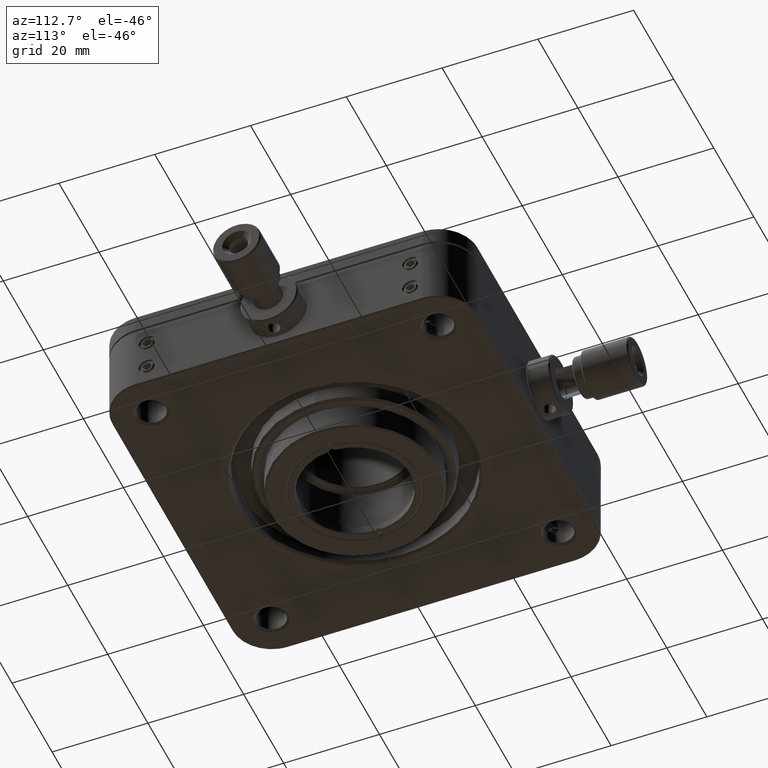
[diagram: clean part render]
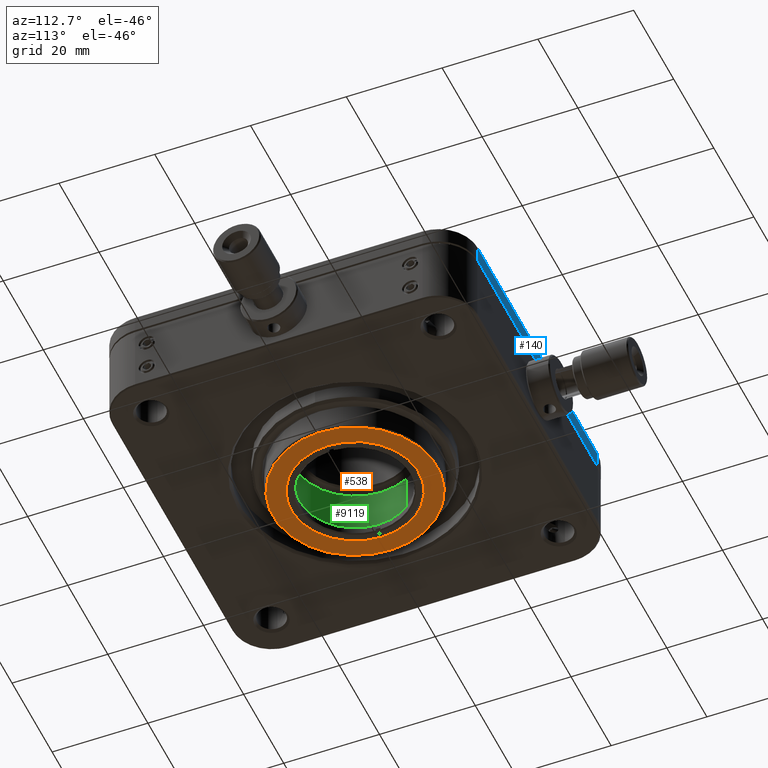
[diagram: same view with three faces highlighted in distinct colors, each labeled with its STEP entity id]
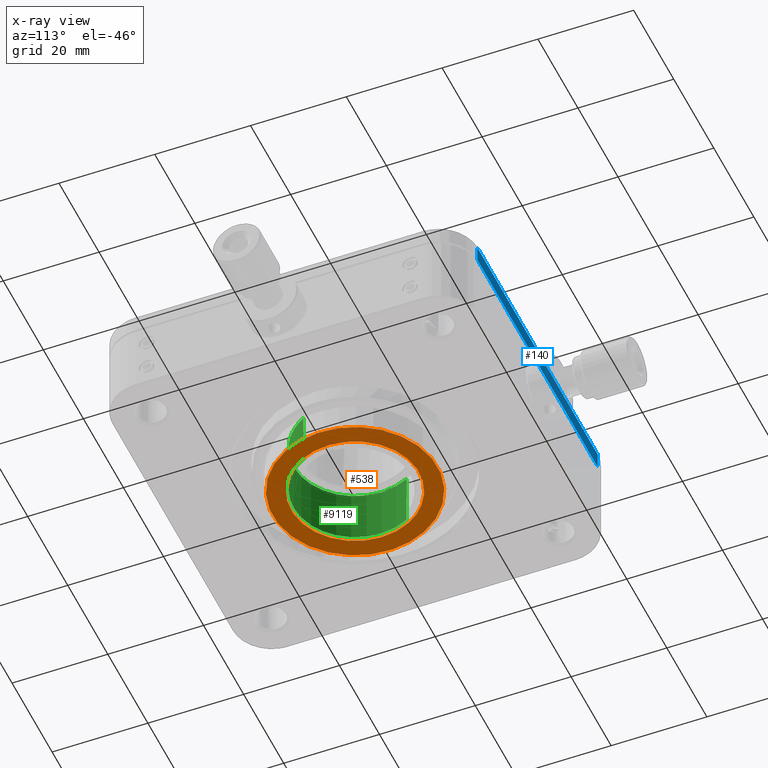
[diagram: x-ray of the same camera — body ghosted, the three highlighted faces saturated]
A machine part, auxiliary view with three faces highlighted in distinct colors.
The next image is the same camera in x-ray (body ghosted, the three faces saturated) — at least one of them is partly hidden behind the body in this view.
Their STEP definitions:

[orange] entity #538 — the highlighted face is a freeform B-spline surface patch.
#146 = CARTESIAN_POINT ( 'NONE',  ( 3.000148285765751321, 13.01436914293553038, -12.50000000000000000 ) ) ;
#538 = ADVANCED_FACE ( 'NONE', ( #1488, #22276 ), #20099, .T. ) ;
#1004 = CARTESIAN_POINT ( 'NONE',  ( 15.18839880033219991, -8.071712450407829920, -12.50000000000000000 ) ) ;
#1039 = CARTESIAN_POINT ( 'NONE',  ( 15.18839880033219991, -8.071712450407829920, -12.50000000000000000 ) ) ;
#1132 = CARTESIAN_POINT ( 'NONE',  ( -14.03619437992443864, 10.00502530690279279, -12.50000000000000000 ) ) ;
#1258 = CARTESIAN_POINT ( 'NONE',  ( -14.65841050661798128, 9.068982064990290581, -12.50000000000000533 ) ) ;
#1378 = CARTESIAN_POINT ( 'NONE',  ( 3.062379221217649938, -12.99985970791079559, -12.50000000000000178 ) ) ;
#1397 = CARTESIAN_POINT ( 'NONE',  ( -9.138995276775430554, 14.61485714588067886, -12.50000000000000178 ) ) ;
#1488 = FACE_BOUND ( 'NONE', #16342, .T. ) ;
#1513 = CARTESIAN_POINT ( 'NONE',  ( -7.752159049110244560, -10.87560223630127432, -12.50000000000000355 ) ) ;
#1532 = CARTESIAN_POINT ( 'NONE',  ( 2.769099949981960851, 17.01315947717462507, -12.50000000000000178 ) ) ;
#1771 = CARTESIAN_POINT ( 'NONE',  ( 12.15263050040040760, 5.539683279839056063, -12.50000000000000355 ) ) ;
#1787 = CARTESIAN_POINT ( 'NONE',  ( -13.34751159718319080, -0.4673896469741548598, -12.49999999999999822 ) ) ;
#1919 = CARTESIAN_POINT ( 'NONE',  ( 2.208607858237243260, -13.17181632325486795, -12.49999999999999645 ) ) ;
#2039 = CARTESIAN_POINT ( 'NONE',  ( 5.481478744456917518, 12.17900179401980232, -12.50000000000000178 ) ) ;
#2069 = CARTESIAN_POINT ( 'NONE',  ( -16.99970946854011444, -2.850466987521836248, -12.50000000000000000 ) ) ;
#2073 = CARTESIAN_POINT ( 'NONE',  ( 16.99970946853106213, 2.850466987883303993, -12.50000000000000000 ) ) ;
#2166 = CARTESIAN_POINT ( 'NONE',  ( 4.676059823144166572, 12.51035504888888461, -12.50000000000000000 ) ) ;
#2331 = CARTESIAN_POINT ( 'NONE',  ( -0.5207827301921591490, -17.22916334049039833, -12.50000000000000000 ) ) ;
#2462 = CARTESIAN_POINT ( 'NONE',  ( -6.034995232019384481, -16.14603178737165834, -12.50000000000000355 ) ) ;
#3415 = CARTESIAN_POINT ( 'NONE',  ( -12.51035504883721927, 4.676059823546214744, -12.50000000000000355 ) ) ;
#3434 = CARTESIAN_POINT ( 'NONE',  ( -10.07207108347648372, 13.98816978805282218, -12.50000000000000533 ) ) ;
#3468 = VERTEX_POINT ( 'NONE', #16494 ) ;
#3684 = CARTESIAN_POINT ( 'NONE',  ( 4.735863965526331043, -12.48784554776886502, -12.50000000000000178 ) ) ;
#3801 = CARTESIAN_POINT ( 'NONE',  ( 13.34960158430685695, -0.4035238107039470501, -12.50000000000000178 ) ) ;
#3814 = CARTESIAN_POINT ( 'NONE',  ( 7.804100416550711294, -10.83838251805759079, -12.50000000000000000 ) ) ;
#3833 = CARTESIAN_POINT ( 'NONE',  ( 12.60749561055297185, -11.75442743654397049, -12.49999999999999645 ) ) ;
#4053 = CARTESIAN_POINT ( 'NONE',  ( 23.53923258574890198, 7.202086586123430223, -12.50000000000000000 ) ) ;
#4060 = CARTESIAN_POINT ( 'NONE',  ( 9.724928229336351038, 9.154259383479782741, -12.50000000000000355 ) ) ;
#4091 = CARTESIAN_POINT ( 'NONE',  ( -17.01315947724854283, 2.769099949721304466, -12.49999999999999822 ) ) ;
#4095 = CARTESIAN_POINT ( 'NONE',  ( 12.55110723242730764, 11.81460923194923218, -12.50000000000000000 ) ) ;
#5405 = CARTESIAN_POINT ( 'NONE',  ( -13.17181632330541241, -2.208607857806386576, -12.50000000000000355 ) ) ;
#5541 = CARTESIAN_POINT ( 'NONE',  ( -0.4035238106612424325, -13.34960158430961563, -12.49999999999999822 ) ) ;
#5668 = CARTESIAN_POINT ( 'NONE',  ( 10.83838251794558616, 7.804100416651814420, -12.50000000000000000 ) ) ;
#5696 = CARTESIAN_POINT ( 'NONE',  ( 14.65841050672153756, -9.068982064795379827, -12.50000000000000178 ) ) ;
#5830 = CARTESIAN_POINT ( 'NONE',  ( 14.03619437962343497, -10.00502530720331151, -12.50000000000000178 ) ) ;
#5893 = EDGE_CURVE ( 'NONE', #19868, #3468, #15162, .T. ) ;
#5935 = CARTESIAN_POINT ( 'NONE',  ( -10.87561288100938839, 7.752146015202260543, -12.50000000000000178 ) ) ;
#5949 = CARTESIAN_POINT ( 'NONE',  ( -12.15263050049145654, -5.539683279654978421, -12.49999999999999645 ) ) ;
#5970 = CARTESIAN_POINT ( 'NONE',  ( 13.98816978815118972, 10.07207108337034462, -12.50000000000000178 ) ) ;
#6060 = CARTESIAN_POINT ( 'NONE',  ( 7.202086586123430223, -23.53923258574890198, -12.50000000000000000 ) ) ;
#6105 = CARTESIAN_POINT ( 'NONE',  ( 16.79651497374374003, -3.872002945166439059, -12.50000000000000178 ) ) ;
#6206 = CARTESIAN_POINT ( 'NONE',  ( 12.99985970795298762, 3.062379221079850833, -12.50000000000000355 ) ) ;
#6240 = CARTESIAN_POINT ( 'NONE',  ( 15.71840288875287328, -7.074413115204975178, -12.50000000000000178 ) ) ;
#6637 = CARTESIAN_POINT ( 'NONE',  ( -11.75442743679452207, -12.60749561029816412, -12.49999999999999822 ) ) ;
#6653 = B_SPLINE_CURVE_WITH_KNOTS ( 'NONE', 3,
 ( #15704, #1258, #1132, #9468, #17727, #3434, #1397, #17594, #13422, #22050, #20039, #9739, #25813, #1532, #7461, #13678, #17999, #26223, #15978, #12452, #4095, #5970, #20590, #12322, #7996, #24478, #2073, #20717, #16381, #10280, #6105, #8393, #6240, #16512 ),
 .UNSPECIFIED., .F., .F.,
 ( 4, 2, 2, 2, 2, 2, 2, 2, 2, 2, 2, 2, 2, 2, 2, 2, 4 ),
 ( 0.000000000000000000, 0.06250000000000002776, 0.1250000000000000555, 0.1875000000000000833, 0.2500000000000000555, 0.3125000000000000000, 0.3750000000000000000, 0.4374999999999999445, 0.4999999999999999445, 0.5624999999999998890, 0.6249999999999998890, 0.6875000000000000000, 0.7500000000000000000, 0.8125000000000000000, 0.8750000000000000000, 0.9375000000000001110, 1.000000000000000000 ),
 .UNSPECIFIED. ) ;
#7461 = CARTESIAN_POINT ( 'NONE',  ( 3.872019060722723172, 16.79651012728189485, -12.50000000000000355 ) ) ;
#7711 = CARTESIAN_POINT ( 'NONE',  ( 0.4673896465433265979, -13.34751159723377079, -12.50000000000000000 ) ) ;
#7843 = CARTESIAN_POINT ( 'NONE',  ( -12.48784554792579726, -4.735863965279094145, -12.50000000000000000 ) ) ;
#7964 = CARTESIAN_POINT ( 'NONE',  ( -5.539683280024289225, 12.15263050024763025, -12.50000000000000000 ) ) ;
#7976 = CARTESIAN_POINT ( 'NONE',  ( -13.01436914298717618, 3.000148285363720024, -12.50000000000000000 ) ) ;
#7996 = CARTESIAN_POINT ( 'NONE',  ( 16.11696629536867320, 6.112174858320924997, -12.50000000000000178 ) ) ;
#8128 = CARTESIAN_POINT ( 'NONE',  ( -15.68435461884501869, -7.149582513768384828, -12.49999999999999822 ) ) ;
#8355 = CARTESIAN_POINT ( 'NONE',  ( -9.768599706146481765, 9.107634607816400774, -12.49999999999999822 ) ) ;
#8390 = CARTESIAN_POINT ( 'NONE',  ( 0.6032102900378915056, -17.22648098935437488, -12.50000000000000355 ) ) ;
#8393 = CARTESIAN_POINT ( 'NONE',  ( 16.14602694111933090, -6.035011347116124192, -12.49999999999999822 ) ) ;
#8522 = CARTESIAN_POINT ( 'NONE',  ( -17.22648098935765049, -0.6032102903520705217, -12.49999999999999822 ) ) ;
#9468 = CARTESIAN_POINT ( 'NONE',  ( -12.60749561025195398, 11.75442743684453184, -12.50000000000000178 ) ) ;
#9739 = CARTESIAN_POINT ( 'NONE',  ( -0.6032102899186259082, 17.22648098936494065, -12.50000000000000178 ) ) ;
#9981 = CARTESIAN_POINT ( 'NONE',  ( 9.107621573870874343, 9.768610350874554982, -12.50000000000000000 ) ) ;
#10013 = CARTESIAN_POINT ( 'NONE',  ( 6.112174858279388445, -16.11696629536521286, -12.50000000000000178 ) ) ;
#10276 = CARTESIAN_POINT ( 'NONE',  ( -15.18839880033219991, 8.071712450407840578, -12.50000000000000000 ) ) ;
#10280 = CARTESIAN_POINT ( 'NONE',  ( 17.01315947719049859, -2.769099949869390453, -12.50000000000000000 ) ) ;
#10415 = CARTESIAN_POINT ( 'NONE',  ( 2.850466987836044019, -16.99970946854341136, -12.50000000000000000 ) ) ;
#10677 = CARTESIAN_POINT ( 'NONE',  ( -16.14602694108813452, 6.035011347174785712, -12.50000000000000178 ) ) ;
#11903 = CARTESIAN_POINT ( 'NONE',  ( 9.768599706048801679, -9.107634608000214627, -12.50000000000000000 ) ) ;
#12013 = CARTESIAN_POINT ( 'NONE',  ( -7.202086586123420453, 23.53923258574890198, -12.50000000000000000 ) ) ;
#12022 = CARTESIAN_POINT ( 'NONE',  ( 12.51035504888061745, -4.676059823257930681, -12.50000000000000178 ) ) ;
#12036 = CARTESIAN_POINT ( 'NONE',  ( 7.081123476495479352, -11.32397387120239607, -12.50000000000000000 ) ) ;
#12055 = CARTESIAN_POINT ( 'NONE',  ( 11.81460923160715559, -12.55110723266789563, -12.49999999999999822 ) ) ;
#12155 = CARTESIAN_POINT ( 'NONE',  ( -7.081123476321678822, 11.32397387131709010, -12.50000000000000355 ) ) ;
#12322 = CARTESIAN_POINT ( 'NONE',  ( 15.68435461908068085, 7.149582513182911825, -12.50000000000000000 ) ) ;
#12449 = CARTESIAN_POINT ( 'NONE',  ( -14.61485714606175890, -9.138995276368211407, -12.50000000000000000 ) ) ;
#12452 = CARTESIAN_POINT ( 'NONE',  ( 11.75442743685301750, 12.60749561022853094, -12.50000000000000178 ) ) ;
#12586 = CARTESIAN_POINT ( 'NONE',  ( -16.11696629543726900, -6.112174857911990777, -12.50000000000000000 ) ) ;
#12758 = B_SPLINE_CURVE_WITH_KNOTS ( 'NONE', 3,
 ( #17846, #26346, #3415, #7976, #18389, #13659, #1787, #5405, #19881, #7843, #5949, #22302, #18253, #15684, #13926, #1513, #15818, #22439, #17978, #18114, #26202, #5541, #7711, #1919, #1378, #3684, #23912, #12036, #3814, #20018, #11903, #16228, #24048, #22033 ),
 .UNSPECIFIED., .F., .F.,
 ( 4, 2, 2, 2, 2, 2, 2, 2, 2, 2, 2, 2, 2, 2, 2, 2, 4 ),
 ( 0.000000000000000000, 0.06250000000000001388, 0.1250000000000000000, 0.1874999999999999722, 0.2499999999999999722, 0.3124999999999999445, 0.3749999999999999445, 0.4375000000000000000, 0.5000000000000000000, 0.5625000000000000000, 0.6250000000000000000, 0.6875000000000000000, 0.7500000000000000000, 0.8125000000000001110, 0.8750000000000001110, 0.9375000000000001110, 1.000000000000000000 ),
 .UNSPECIFIED. ) ;
#12863 = CARTESIAN_POINT ( 'NONE',  ( -16.79651497377487956, 3.872002945107839711, -12.50000000000000000 ) ) ;
#13163 = VERTEX_POINT ( 'NONE', #15030 ) ;
#13422 = CARTESIAN_POINT ( 'NONE',  ( -6.112174858365409413, 16.11696629535507341, -12.50000000000000355 ) ) ;
#13659 = CARTESIAN_POINT ( 'NONE',  ( -13.34960158429881716, 0.4035238106242921008, -12.50000000000000000 ) ) ;
#13678 = CARTESIAN_POINT ( 'NONE',  ( 6.034995231559911133, 16.14603178758112634, -12.50000000000000178 ) ) ;
#13914 = CARTESIAN_POINT ( 'NONE',  ( -9.154259383348584578, 9.724928229444531169, -12.50000000000000000 ) ) ;
#13926 = CARTESIAN_POINT ( 'NONE',  ( -9.107621573908419421, -9.768610350854594060, -12.50000000000000000 ) ) ;
#14082 = CARTESIAN_POINT ( 'NONE',  ( 10.07207108371237858, -13.98816978791052179, -12.49999999999999645 ) ) ;
#14183 = CARTESIAN_POINT ( 'NONE',  ( -11.76835993093174082, 6.254169292243309641, -12.50000000000000000 ) ) ;
#14615 = CARTESIAN_POINT ( 'NONE',  ( 3.952339496939080377, -16.77779849773823528, -12.50000000000000355 ) ) ;
#14873 = CARTESIAN_POINT ( 'NONE',  ( -17.22916334041534370, 0.5207827306934932343, -12.50000000000000000 ) ) ;
#15030 = CARTESIAN_POINT ( 'NONE',  ( -15.18839880033219991, 8.071712450407840578, -12.50000000000000000 ) ) ;
#15162 = B_SPLINE_CURVE_WITH_KNOTS ( 'NONE', 3,
 ( #24163, #19460, #12022, #16476, #18099, #3801, #20280, #20552, #6206, #20144, #1771, #22561, #5668, #4060, #9981, #26472, #24703, #2039, #2166, #146, #16346, #16080, #26606, #18239, #16214, #20416, #7964, #12155, #24573, #13914, #8355, #5935, #24441, #14183 ),
 .UNSPECIFIED., .F., .F.,
 ( 4, 2, 2, 2, 2, 2, 2, 2, 2, 2, 2, 2, 2, 2, 2, 2, 4 ),
 ( 0.000000000000000000, 0.06249999999999995837, 0.1249999999999999167, 0.1874999999999998890, 0.2499999999999998335, 0.3124999999999997780, 0.3749999999999997780, 0.4374999999999997780, 0.4999999999999997780, 0.5624999999999998890, 0.6249999999999997780, 0.6874999999999998890, 0.7499999999999998890, 0.8125000000000000000, 0.8750000000000001110, 0.9375000000000000000, 1.000000000000000000 ),
 .UNSPECIFIED. ) ;
#15684 = CARTESIAN_POINT ( 'NONE',  ( -9.724928229123218415, -9.154259383664541616, -12.50000000000000355 ) ) ;
#15704 = CARTESIAN_POINT ( 'NONE',  ( -15.18839880033219991, 8.071712450407840578, -12.50000000000000000 ) ) ;
#15818 = CARTESIAN_POINT ( 'NONE',  ( -7.026859839962307674, -11.35771806787955640, -12.50000000000000000 ) ) ;
#15978 = CARTESIAN_POINT ( 'NONE',  ( 10.00502530689431779, 14.03619437994788122, -12.50000000000000355 ) ) ;
#16080 = CARTESIAN_POINT ( 'NONE',  ( 0.4035238105944096154, 13.34960158431467825, -12.50000000000000178 ) ) ;
#16214 = CARTESIAN_POINT ( 'NONE',  ( -3.062379221417402597, 12.99985970782464051, -12.50000000000000000 ) ) ;
#16228 = CARTESIAN_POINT ( 'NONE',  ( 10.87561288110708979, -7.752146015018420933, -12.49999999999999822 ) ) ;
#16342 = EDGE_LOOP ( 'NONE', ( #21257, #23013 ) ) ;
#16346 = CARTESIAN_POINT ( 'NONE',  ( 2.145561449980451396, 13.18222610120899674, -12.50000000000000000 ) ) ;
#16381 = CARTESIAN_POINT ( 'NONE',  ( 17.22916334047343412, -0.5207827305453548439, -12.50000000000000000 ) ) ;
#16476 = CARTESIAN_POINT ( 'NONE',  ( 13.01436914294377623, -3.000148285651962787, -12.50000000000000000 ) ) ;
#16494 = CARTESIAN_POINT ( 'NONE',  ( -11.76835993093174082, 6.254169292243309641, -12.50000000000000000 ) ) ;
#16508 = CARTESIAN_POINT ( 'NONE',  ( -3.872019060263216073, -16.79651012749131311, -12.50000000000000000 ) ) ;
#16512 = CARTESIAN_POINT ( 'NONE',  ( 15.18839880033219991, -8.071712450407829920, -12.50000000000000000 ) ) ;
#16672 = VERTEX_POINT ( 'NONE', #1004 ) ;
#16776 = CARTESIAN_POINT ( 'NONE',  ( -2.769099950222619899, -17.01315947717345978, -12.50000000000000355 ) ) ;
#17594 = CARTESIAN_POINT ( 'NONE',  ( -7.149582513361206537, 15.68435461902613071, -12.50000000000000178 ) ) ;
#17670 = EDGE_CURVE ( 'NONE', #3468, #19868, #12758, .T. ) ;
#17727 = CARTESIAN_POINT ( 'NONE',  ( -11.81460923184302025, 12.55110723252563609, -12.50000000000000178 ) ) ;
#17846 = CARTESIAN_POINT ( 'NONE',  ( -11.76835993093174082, 6.254169292243309641, -12.50000000000000000 ) ) ;
#17978 = CARTESIAN_POINT ( 'NONE',  ( -4.676059823061599729, -12.51035504889812167, -12.50000000000000000 ) ) ;
#17999 = CARTESIAN_POINT ( 'NONE',  ( 7.074455869607217728, 15.71837644962300473, -12.50000000000000178 ) ) ;
#18093 = CARTESIAN_POINT ( 'NONE',  ( -23.53923258574890198, -7.202086586123430223, -12.50000000000000000 ) ) ;
#18099 = CARTESIAN_POINT ( 'NONE',  ( 13.18222610121680383, -2.145561449870902582, -12.50000000000000178 ) ) ;
#18114 = CARTESIAN_POINT ( 'NONE',  ( -3.000148285848288854, -13.01436914292626490, -12.49999999999999822 ) ) ;
#18239 = CARTESIAN_POINT ( 'NONE',  ( -2.208607858172892069, 13.17181632324954776, -12.50000000000000178 ) ) ;
#18253 = CARTESIAN_POINT ( 'NONE',  ( -10.83838251815872944, -7.804100416467013801, -12.49999999999999822 ) ) ;
#18389 = CARTESIAN_POINT ( 'NONE',  ( -13.18222610122483118, 2.145561449950594390, -12.50000000000000178 ) ) ;
#18618 = EDGE_LOOP ( 'NONE', ( #20955, #19667 ) ) ;
#19061 = CARTESIAN_POINT ( 'NONE',  ( -7.074455869562132015, -15.71837644968165293, -12.50000000000000000 ) ) ;
#19283 = B_SPLINE_CURVE_WITH_KNOTS ( 'NONE', 3,
 ( #1039, #5696, #5830, #3833, #12055, #14082, #22318, #20308, #10013, #14615, #10415, #8390, #2331, #16776, #16508, #2462, #19061, #22590, #22854, #6637, #23114, #22724, #12449, #8128, #12586, #22988, #2069, #8522, #14873, #4091, #12863, #10677, #20971, #10276 ),
 .UNSPECIFIED., .F., .F.,
 ( 4, 2, 2, 2, 2, 2, 2, 2, 2, 2, 2, 2, 2, 2, 2, 2, 4 ),
 ( 0.000000000000000000, 0.06250000000000000000, 0.1250000000000000000, 0.1875000000000000000, 0.2500000000000000000, 0.3125000000000000000, 0.3750000000000000000, 0.4375000000000000000, 0.5000000000000000000, 0.5625000000000000000, 0.6250000000000000000, 0.6875000000000000000, 0.7500000000000000000, 0.8125000000000000000, 0.8750000000000000000, 0.9375000000000000000, 1.000000000000000000 ),
 .UNSPECIFIED. ) ;
#19460 = CARTESIAN_POINT ( 'NONE',  ( 12.17900664048087656, -5.481462629438345502, -12.50000000000000178 ) ) ;
#19667 = ORIENTED_EDGE ( 'NONE', *, *, #23259, .T. ) ;
#19868 = VERTEX_POINT ( 'NONE', #19957 ) ;
#19881 = CARTESIAN_POINT ( 'NONE',  ( -12.99985970775388999, -3.062379221464863299, -12.50000000000000178 ) ) ;
#19957 = CARTESIAN_POINT ( 'NONE',  ( 11.76835993093176036, -6.254169292243309641, -12.50000000000000000 ) ) ;
#20018 = CARTESIAN_POINT ( 'NONE',  ( 9.154259383580875209, -9.724928229224339304, -12.49999999999999645 ) ) ;
#20039 = CARTESIAN_POINT ( 'NONE',  ( -2.850466987955263320, 16.99970946853291309, -12.50000000000000355 ) ) ;
#20099 = B_SPLINE_SURFACE_WITH_KNOTS ( 'NONE', 1, 1, ( 
 ( #6060, #4053 ),
 ( #18093, #12013 ) ),
 .UNSPECIFIED., .F., .F., .F.,
 ( 2, 2 ),
 ( 2, 2 ),
 ( 0.000000000000000000, 1.000000000000000000 ),
 ( 0.000000000000000000, 1.000000000000000000 ),
 .UNSPECIFIED. ) ;
#20144 = CARTESIAN_POINT ( 'NONE',  ( 12.48784554772670141, 4.735863965664163899, -12.50000000000000533 ) ) ;
#20280 = CARTESIAN_POINT ( 'NONE',  ( 13.34751159722322633, 0.4673896465777910847, -12.50000000000000178 ) ) ;
#20308 = CARTESIAN_POINT ( 'NONE',  ( 7.149582513497581893, -15.68435461896823924, -12.50000000000000355 ) ) ;
#20416 = CARTESIAN_POINT ( 'NONE',  ( -4.735863965326550407, 12.48784554785497392, -12.50000000000000355 ) ) ;
#20552 = CARTESIAN_POINT ( 'NONE',  ( 13.17181632326541774, 2.208607858202784602, -12.50000000000000711 ) ) ;
#20590 = CARTESIAN_POINT ( 'NONE',  ( 14.61485714582612871, 9.138995276953739477, -12.50000000000000178 ) ) ;
#20717 = CARTESIAN_POINT ( 'NONE',  ( 17.22648098936680938, 0.6032102899906656157, -12.50000000000000000 ) ) ;
#20955 = ORIENTED_EDGE ( 'NONE', *, *, #24093, .T. ) ;
#20971 = CARTESIAN_POINT ( 'NONE',  ( -15.71840288872167868, 7.074413115263619822, -12.50000000000000178 ) ) ;
#21257 = ORIENTED_EDGE ( 'NONE', *, *, #5893, .T. ) ;
#22033 = CARTESIAN_POINT ( 'NONE',  ( 11.76835993093176036, -6.254169292243309641, -12.50000000000000000 ) ) ;
#22050 = CARTESIAN_POINT ( 'NONE',  ( -3.952339496853088274, 16.77779849774842802, -12.50000000000000355 ) ) ;
#22276 = FACE_OUTER_BOUND ( 'NONE', #18618, .T. ) ;
#22302 = CARTESIAN_POINT ( 'NONE',  ( -11.32397387107326558, -7.081123476690996732, -12.50000000000000355 ) ) ;
#22318 = CARTESIAN_POINT ( 'NONE',  ( 9.138995276639059639, -14.61485714593853658, -12.50000000000000000 ) ) ;
#22439 = CARTESIAN_POINT ( 'NONE',  ( -5.481478744524324931, -12.17900179398398564, -12.49999999999999822 ) ) ;
#22561 = CARTESIAN_POINT ( 'NONE',  ( 11.32397387116431631, 7.081123476506926195, -12.50000000000000178 ) ) ;
#22590 = CARTESIAN_POINT ( 'NONE',  ( -9.068969031253494961, -14.65842115098261189, -12.49999999999999822 ) ) ;
#22724 = CARTESIAN_POINT ( 'NONE',  ( -13.98816978792193666, -10.07207108364952930, -12.49999999999999822 ) ) ;
#22854 = CARTESIAN_POINT ( 'NONE',  ( -10.00502530695277947, -14.03619437987820007, -12.50000000000000000 ) ) ;
#22988 = CARTESIAN_POINT ( 'NONE',  ( -16.77779849766617559, -3.952339497306432303, -12.49999999999999822 ) ) ;
#23013 = ORIENTED_EDGE ( 'NONE', *, *, #17670, .T. ) ;
#23114 = CARTESIAN_POINT ( 'NONE',  ( -12.55110723265651274, -11.81460923166995691, -12.50000000000000000 ) ) ;
#23259 = EDGE_CURVE ( 'NONE', #16672, #13163, #19283, .T. ) ;
#23912 = CARTESIAN_POINT ( 'NONE',  ( 5.539683279850516229, -12.15263050036229231, -12.50000000000000178 ) ) ;
#24048 = CARTESIAN_POINT ( 'NONE',  ( 11.35769742689170236, -7.026905675263085627, -12.49999999999999822 ) ) ;
#24093 = EDGE_CURVE ( 'NONE', #13163, #16672, #6653, .T. ) ;
#24163 = CARTESIAN_POINT ( 'NONE',  ( 11.76835993093176036, -6.254169292243309641, -12.50000000000000000 ) ) ;
#24441 = CARTESIAN_POINT ( 'NONE',  ( -11.35769742679400096, 7.026905675446927013, -12.50000000000000178 ) ) ;
#24478 = CARTESIAN_POINT ( 'NONE',  ( 16.77779849773482823, 3.952339496897586457, -12.50000000000000000 ) ) ;
#24573 = CARTESIAN_POINT ( 'NONE',  ( -7.804100416782975280, 10.83838251783743445, -12.50000000000000000 ) ) ;
#24703 = CARTESIAN_POINT ( 'NONE',  ( 7.026859840029735516, 11.35771806784376814, -12.50000000000000178 ) ) ;
#25813 = CARTESIAN_POINT ( 'NONE',  ( 0.5207827304327883322, 17.22916334048929343, -12.50000000000000000 ) ) ;
#26202 = CARTESIAN_POINT ( 'NONE',  ( -2.145561449913603980, -13.18222610121404514, -12.50000000000000000 ) ) ;
#26223 = CARTESIAN_POINT ( 'NONE',  ( 9.068969031208473197, 14.65842115104133825, -12.50000000000000533 ) ) ;
#26346 = CARTESIAN_POINT ( 'NONE',  ( -12.17900664058061722, 5.481462629250688501, -12.50000000000000178 ) ) ;
#26472 = CARTESIAN_POINT ( 'NONE',  ( 7.752159049147770986, 10.87560223628133826, -12.50000000000000355 ) ) ;
#26606 = CARTESIAN_POINT ( 'NONE',  ( -0.4673896466076707390, 13.34751159723909986, -12.50000000000000178 ) ) ;

[blue] entity #140 — the highlighted face is a freeform B-spline surface patch.
#93 = CARTESIAN_POINT ( 'NONE',  ( -30.00000000000000000, 38.10000000000000142, 11.15000000000000036 ) ) ;
#140 = ADVANCED_FACE ( 'NONE', ( #21156 ), #10606, .T. ) ;
#768 = CARTESIAN_POINT ( 'NONE',  ( -30.00000000000000000, 38.10000000000000142, 11.15000000000000036 ) ) ;
#1336 = B_SPLINE_CURVE_WITH_KNOTS ( 'NONE', 1,
 ( #18638, #22553 ),
 .UNSPECIFIED., .F., .F.,
 ( 2, 2 ),
 ( -1.000000000000000000, 0.000000000000000000 ),
 .UNSPECIFIED. ) ;
#2471 = ORIENTED_EDGE ( 'NONE', *, *, #14297, .T. ) ;
#3337 = EDGE_CURVE ( 'NONE', #19901, #4260, #15823, .T. ) ;
#3624 = CARTESIAN_POINT ( 'NONE',  ( 30.00000000000000000, 38.10000000000000142, 7.750000000000000000 ) ) ;
#4260 = VERTEX_POINT ( 'NONE', #13310 ) ;
#5420 = CARTESIAN_POINT ( 'NONE',  ( -30.00000000000000000, 38.10000000000000142, 11.15000000000000036 ) ) ;
#5951 = CARTESIAN_POINT ( 'NONE',  ( -30.00000000000000000, 38.10000000000000142, 11.15000000000000036 ) ) ;
#6555 = CARTESIAN_POINT ( 'NONE',  ( -30.00000000000000000, 38.10000000000000142, 7.750000000000000000 ) ) ;
#9042 = VERTEX_POINT ( 'NONE', #5951 ) ;
#9273 = CARTESIAN_POINT ( 'NONE',  ( 30.00000000000000000, 38.10000000000000142, 11.15000000000000036 ) ) ;
#10606 = B_SPLINE_SURFACE_WITH_KNOTS ( 'NONE', 1, 1, ( 
 ( #19248, #23176 ),
 ( #23568, #768 ) ),
 .UNSPECIFIED., .F., .F., .F.,
 ( 2, 2 ),
 ( 2, 2 ),
 ( 0.000000000000000000, 1.000000000000000000 ),
 ( 0.000000000000000000, 1.000000000000000000 ),
 .UNSPECIFIED. ) ;
#11643 = CARTESIAN_POINT ( 'NONE',  ( -30.00000000000000000, 38.10000000000000142, 7.750000000000000000 ) ) ;
#12957 = ORIENTED_EDGE ( 'NONE', *, *, #24062, .F. ) ;
#13310 = CARTESIAN_POINT ( 'NONE',  ( -30.00000000000000000, 38.10000000000000142, 7.750000000000000000 ) ) ;
#14297 = EDGE_CURVE ( 'NONE', #25311, #19901, #1336, .T. ) ;
#15578 = ORIENTED_EDGE ( 'NONE', *, *, #3337, .T. ) ;
#15823 = B_SPLINE_CURVE_WITH_KNOTS ( 'NONE', 1,
 ( #24919, #6555 ),
 .UNSPECIFIED., .F., .F.,
 ( 2, 2 ),
 ( 0.000000000000000000, 1.000000000000000000 ),
 .UNSPECIFIED. ) ;
#17600 = B_SPLINE_CURVE_WITH_KNOTS ( 'NONE', 1,
 ( #5420, #11643 ),
 .UNSPECIFIED., .F., .F.,
 ( 2, 2 ),
 ( 0.000000000000000000, 1.000000000000000000 ),
 .UNSPECIFIED. ) ;
#18638 = CARTESIAN_POINT ( 'NONE',  ( 30.00000000000000000, 38.10000000000000142, 11.15000000000000036 ) ) ;
#19248 = CARTESIAN_POINT ( 'NONE',  ( 30.00000000000000000, 38.10000000000000142, 7.750000000000000000 ) ) ;
#19797 = ORIENTED_EDGE ( 'NONE', *, *, #20637, .F. ) ;
#19901 = VERTEX_POINT ( 'NONE', #3624 ) ;
#20637 = EDGE_CURVE ( 'NONE', #25311, #9042, #22622, .T. ) ;
#21017 = CARTESIAN_POINT ( 'NONE',  ( 30.00000000000000000, 38.10000000000000142, 11.15000000000000036 ) ) ;
#21156 = FACE_OUTER_BOUND ( 'NONE', #25012, .T. ) ;
#22553 = CARTESIAN_POINT ( 'NONE',  ( 30.00000000000000000, 38.10000000000000142, 7.750000000000000000 ) ) ;
#22622 = B_SPLINE_CURVE_WITH_KNOTS ( 'NONE', 1,
 ( #21017, #93 ),
 .UNSPECIFIED., .F., .F.,
 ( 2, 2 ),
 ( 0.000000000000000000, 1.000000000000000000 ),
 .UNSPECIFIED. ) ;
#23176 = CARTESIAN_POINT ( 'NONE',  ( 30.00000000000000000, 38.10000000000000142, 11.15000000000000036 ) ) ;
#23568 = CARTESIAN_POINT ( 'NONE',  ( -30.00000000000000000, 38.10000000000000142, 7.750000000000000000 ) ) ;
#24062 = EDGE_CURVE ( 'NONE', #9042, #4260, #17600, .T. ) ;
#24919 = CARTESIAN_POINT ( 'NONE',  ( 30.00000000000000000, 38.10000000000000142, 7.750000000000000000 ) ) ;
#25012 = EDGE_LOOP ( 'NONE', ( #19797, #2471, #15578, #12957 ) ) ;
#25311 = VERTEX_POINT ( 'NONE', #9273 ) ;

[green] entity #9119 — the highlighted face is a freeform B-spline surface patch.
#643 = CARTESIAN_POINT ( 'NONE',  ( -11.32683670999190007, 6.019526488452400237, -12.00000000000000000 ) ) ;
#978 = EDGE_CURVE ( 'NONE', #9740, #8120, #24095, .T. ) ;
#1159 = CARTESIAN_POINT ( 'NONE',  ( 11.32683670999190007, -6.019526488452389579, -12.00000000000000000 ) ) ;
#3332 = CARTESIAN_POINT ( 'NONE',  ( -11.32683670999190007, 6.019526488452400237, -12.00000000000000000 ) ) ;
#3392 = CARTESIAN_POINT ( 'NONE',  ( -11.32683670999190007, 6.019526488452400237, -0.6000000000000998979 ) ) ;
#4076 = ORIENTED_EDGE ( 'NONE', *, *, #10890, .T. ) ;
#4234 = EDGE_LOOP ( 'NONE', ( #4076, #15137, #11650, #20412 ) ) ;
#4594 = CARTESIAN_POINT ( 'NONE',  ( -11.32683670999190007, 6.019526488452389579, -12.00000000000000000 ) ) ;
#4978 = CARTESIAN_POINT ( 'NONE',  ( -23.36588968689670054, -16.63414693153139368, -0.6000000000000902389 ) ) ;
#5194 = CARTESIAN_POINT ( 'NONE',  ( -11.32683670999190007, 6.019526488452400237, -0.6000000000000998979 ) ) ;
#5442 =( BOUNDED_CURVE ( )  B_SPLINE_CURVE ( 3, ( #5194, #11151, #7366, #21694 ),
 .UNSPECIFIED., .F., .F. ) 
 B_SPLINE_CURVE_WITH_KNOTS ( ( 4, 4 ),
 ( 0.000000000000000000, 1.000000000000000000 ),
 .UNSPECIFIED. ) 
 CURVE ( )  GEOMETRIC_REPRESENTATION_ITEM ( )  RATIONAL_B_SPLINE_CURVE ( ( 1.000000000000000000, 0.3333333333333340365, 0.3333333333333340365, 1.000000000000000000 ) ) 
 REPRESENTATION_ITEM ( '' )  );
#5537 = CARTESIAN_POINT ( 'NONE',  ( 11.32683670999190007, -6.019526488452389579, -12.00000000000000000 ) ) ;
#6966 = CARTESIAN_POINT ( 'NONE',  ( -0.7122162669128843104, -28.67319990843620658, -12.00000000000001243 ) ) ;
#7366 = CARTESIAN_POINT ( 'NONE',  ( -0.7122162669128745405, -28.67319990843617816, -0.6000000000000902389 ) ) ;
#8120 = VERTEX_POINT ( 'NONE', #5537 ) ;
#8632 = CARTESIAN_POINT ( 'NONE',  ( -0.7122162669128745405, -28.67319990843617816, -11.99999999999997513 ) ) ;
#8884 = CARTESIAN_POINT ( 'NONE',  ( -11.32683670999190007, 6.019526488452389579, -0.6000000000000998979 ) ) ;
#9070 = VERTEX_POINT ( 'NONE', #15390 ) ;
#9119 = ADVANCED_FACE ( 'NONE', ( #21606 ), #23169, .T. ) ;
#9740 = VERTEX_POINT ( 'NONE', #3332 ) ;
#10296 = CARTESIAN_POINT ( 'NONE',  ( 11.32683670999190007, -6.019526488452379809, -0.6000000000000988987 ) ) ;
#10890 = EDGE_CURVE ( 'NONE', #9070, #26540, #5442, .T. ) ;
#11151 = CARTESIAN_POINT ( 'NONE',  ( -23.36588968689670054, -16.63414693153139368, -0.6000000000000902389 ) ) ;
#11479 = EDGE_CURVE ( 'NONE', #26540, #8120, #21354, .T. ) ;
#11650 = ORIENTED_EDGE ( 'NONE', *, *, #978, .F. ) ;
#13233 = CARTESIAN_POINT ( 'NONE',  ( 11.32683670999190007, -6.019526488452389579, -12.00000000000000000 ) ) ;
#13901 = CARTESIAN_POINT ( 'NONE',  ( -11.32683670999190007, 6.019526488452400237, -12.00000000000000000 ) ) ;
#15137 = ORIENTED_EDGE ( 'NONE', *, *, #11479, .T. ) ;
#15258 = CARTESIAN_POINT ( 'NONE',  ( -0.7122162669128745405, -28.67319990843617816, -0.6000000000000902389 ) ) ;
#15390 = CARTESIAN_POINT ( 'NONE',  ( -11.32683670999190007, 6.019526488452400237, -0.6000000000000998979 ) ) ;
#17152 = CARTESIAN_POINT ( 'NONE',  ( -23.36588968689670054, -16.63414693153139368, -11.99999999999997513 ) ) ;
#18228 = B_SPLINE_CURVE_WITH_KNOTS ( 'NONE', 1,
 ( #13901, #3392 ),
 .UNSPECIFIED., .F., .F.,
 ( 2, 2 ),
 ( 0.000000000000000000, 1.000000000000000000 ),
 .UNSPECIFIED. ) ;
#18732 = EDGE_CURVE ( 'NONE', #9740, #9070, #18228, .T. ) ;
#20412 = ORIENTED_EDGE ( 'NONE', *, *, #18732, .T. ) ;
#20818 = CARTESIAN_POINT ( 'NONE',  ( 11.32683670999190007, -6.019526488452379809, -0.6000000000000988987 ) ) ;
#21354 = B_SPLINE_CURVE_WITH_KNOTS ( 'NONE', 1,
 ( #20818, #25240 ),
 .UNSPECIFIED., .F., .F.,
 ( 2, 2 ),
 ( 0.000000000000000000, 1.000000000000000000 ),
 .UNSPECIFIED. ) ;
#21606 = FACE_OUTER_BOUND ( 'NONE', #4234, .T. ) ;
#21694 = CARTESIAN_POINT ( 'NONE',  ( 11.32683670999190007, -6.019526488452379809, -0.6000000000000988987 ) ) ;
#23169 =( BOUNDED_SURFACE ( )  B_SPLINE_SURFACE ( 1, 3, ( 
 ( #25509, #15258, #4978, #8884 ),
 ( #13233, #8632, #17152, #4594 ) ),
 .UNSPECIFIED., .F., .F., .F. ) 
 B_SPLINE_SURFACE_WITH_KNOTS ( ( 2, 2 ),
 ( 4, 4 ),
 ( 0.000000000000000000, 1.000000000000000000 ),
 ( 0.000000000000000000, 1.000000000000000000 ),
 .UNSPECIFIED. ) 
 GEOMETRIC_REPRESENTATION_ITEM ( )  RATIONAL_B_SPLINE_SURFACE ( (
 ( 1.000000000000000000, 0.3333333333333340365, 0.3333333333333340365, 1.000000000000000000),
 ( 1.000000000000000000, 0.3333333333333340365, 0.3333333333333340365, 1.000000000000000000) ) ) 
 REPRESENTATION_ITEM ( '' )  SURFACE ( )  );
#23446 = CARTESIAN_POINT ( 'NONE',  ( -23.36588968689671475, -16.63414693153138657, -12.00000000000001243 ) ) ;
#24095 =( BOUNDED_CURVE ( )  B_SPLINE_CURVE ( 3, ( #643, #23446, #6966, #1159 ),
 .UNSPECIFIED., .F., .F. ) 
 B_SPLINE_CURVE_WITH_KNOTS ( ( 4, 4 ),
 ( 0.000000000000000000, 1.000000000000000000 ),
 .UNSPECIFIED. ) 
 CURVE ( )  GEOMETRIC_REPRESENTATION_ITEM ( )  RATIONAL_B_SPLINE_CURVE ( ( 1.000000000000000000, 0.3333333333333329818, 0.3333333333333329818, 1.000000000000000000 ) ) 
 REPRESENTATION_ITEM ( '' )  );
#25240 = CARTESIAN_POINT ( 'NONE',  ( 11.32683670999190007, -6.019526488452389579, -12.00000000000000000 ) ) ;
#25509 = CARTESIAN_POINT ( 'NONE',  ( 11.32683670999190007, -6.019526488452389579, -0.6000000000000988987 ) ) ;
#26540 = VERTEX_POINT ( 'NONE', #10296 ) ;